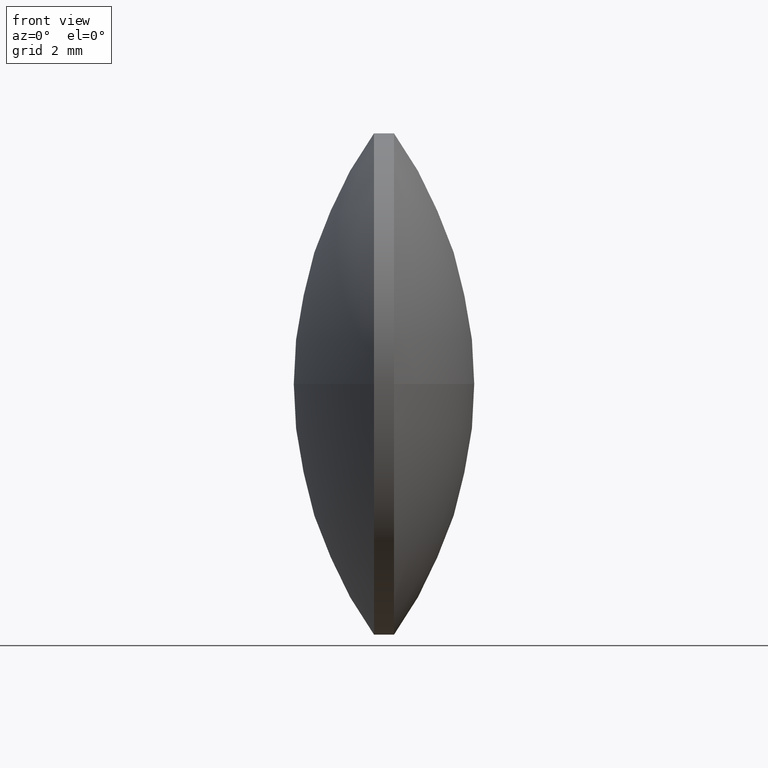
[diagram: clean part render]
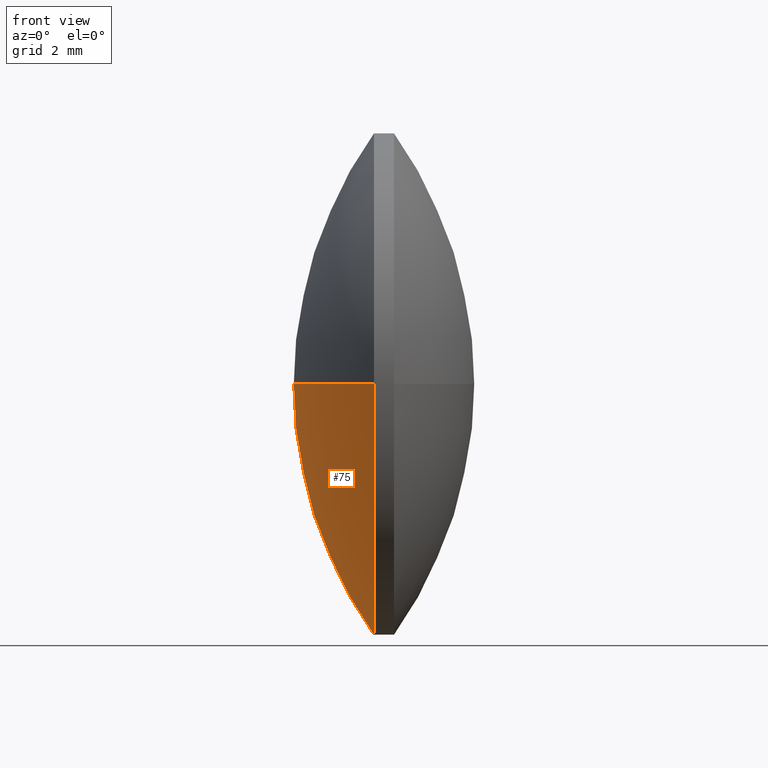
[diagram: same view with one face highlighted and labeled with its STEP entity id]
A machine part, front view. The second image highlights one B-rep face of the part: STEP entity #75.
In plain terms, the highlighted spherical surface has radius 12.9187 mm.
Its self-contained STEP definition (entity closure, byte-faithful):
#2 = EDGE_CURVE ( 'NONE', #48, #190, #340, .T. ) ;
#4 = AXIS2_PLACEMENT_3D ( 'NONE', #99, #200, #47 ) ;
#5 = FACE_OUTER_BOUND ( 'NONE', #273, .T. ) ;
#11 = CARTESIAN_POINT ( 'NONE',  ( 61.27673844960327900, 28.71030296644745400, 0.0000000000000000000 ) ) ;
#12 = DIRECTION ( 'NONE',  ( -0.0000000000000000000, 0.0000000000000000000, 1.000000000000000000 ) ) ;
#16 = CARTESIAN_POINT ( 'NONE',  ( 61.27673844960327900, 28.71030296644745400, 0.0000000000000000000 ) ) ;
#28 = ORIENTED_EDGE ( 'NONE', *, *, #203, .T. ) ;
#37 = AXIS2_PLACEMENT_3D ( 'NONE', #206, #12, #299 ) ;
#47 = DIRECTION ( 'NONE',  ( 0.0000000000000000000, 0.0000000000000000000, 1.000000000000000000 ) ) ;
#48 = VERTEX_POINT ( 'NONE', #91 ) ;
#57 = ORIENTED_EDGE ( 'NONE', *, *, #2, .T. ) ;
#62 = DIRECTION ( 'NONE',  ( -0.0000000000000000000, 0.0000000000000000000, -1.000000000000000000 ) ) ;
#63 = CIRCLE ( 'NONE', #94, 12.91874999999985700 ) ;
#71 = ORIENTED_EDGE ( 'NONE', *, *, #223, .F. ) ;
#75 = ADVANCED_FACE ( 'NONE', ( #5 ), #250, .T. ) ;
#85 = CARTESIAN_POINT ( 'NONE',  ( 48.35798844960342500, 28.71030296644745400, 0.0000000000000000000 ) ) ;
#90 = CARTESIAN_POINT ( 'NONE',  ( 50.75798844960341000, 28.71030296644745400, 0.0000000000000000000 ) ) ;
#91 = CARTESIAN_POINT ( 'NONE',  ( 50.75798844960341000, 36.21030296644737900, 0.0000000000000000000 ) ) ;
#92 = AXIS2_PLACEMENT_3D ( 'NONE', #16, #62, #193 ) ;
#94 = AXIS2_PLACEMENT_3D ( 'NONE', #11, #195, #225 ) ;
#99 = CARTESIAN_POINT ( 'NONE',  ( 50.75798844960341000, 28.71030296644745400, 0.0000000000000000000 ) ) ;
#127 = AXIS2_PLACEMENT_3D ( 'NONE', #90, #173, #248 ) ;
#134 = CIRCLE ( 'NONE', #4, 7.499999999999927200 ) ;
#173 = DIRECTION ( 'NONE',  ( -1.000000000000000000, -0.0000000000000000000, -0.0000000000000000000 ) ) ;
#179 = VERTEX_POINT ( 'NONE', #85 ) ;
#190 = VERTEX_POINT ( 'NONE', #227 ) ;
#193 = DIRECTION ( 'NONE',  ( 0.0000000000000000000, 1.000000000000000000, 0.0000000000000000000 ) ) ;
#194 = ORIENTED_EDGE ( 'NONE', *, *, #274, .T. ) ;
#195 = DIRECTION ( 'NONE',  ( 0.0000000000000000000, 1.224646799147353200E-016, -1.000000000000000000 ) ) ;
#200 = DIRECTION ( 'NONE',  ( -1.000000000000000000, -0.0000000000000000000, -0.0000000000000000000 ) ) ;
#203 = EDGE_CURVE ( 'NONE', #190, #288, #134, .T. ) ;
#206 = CARTESIAN_POINT ( 'NONE',  ( 61.27673844960327900, 28.71030296644745400, 0.0000000000000000000 ) ) ;
#223 = EDGE_CURVE ( 'NONE', #48, #179, #337, .T. ) ;
#225 = DIRECTION ( 'NONE',  ( 0.0000000000000000000, 1.000000000000000000, 1.224646799147353200E-016 ) ) ;
#227 = CARTESIAN_POINT ( 'NONE',  ( 50.75798844960341000, 28.71030296644745400, -7.499999999999927200 ) ) ;
#248 = DIRECTION ( 'NONE',  ( 0.0000000000000000000, 0.0000000000000000000, 1.000000000000000000 ) ) ;
#250 = SPHERICAL_SURFACE ( 'NONE', #92, 12.91874999999985700 ) ;
#273 = EDGE_LOOP ( 'NONE', ( #57, #28, #194, #71 ) ) ;
#274 = EDGE_CURVE ( 'NONE', #288, #179, #63, .T. ) ;
#287 = CARTESIAN_POINT ( 'NONE',  ( 50.75798844960341000, 21.21030296644752500, -9.184850993605061200E-016 ) ) ;
#288 = VERTEX_POINT ( 'NONE', #287 ) ;
#299 = DIRECTION ( 'NONE',  ( 1.000000000000000000, 0.0000000000000000000, 0.0000000000000000000 ) ) ;
#337 = CIRCLE ( 'NONE', #37, 12.91874999999985400 ) ;
#340 = CIRCLE ( 'NONE', #127, 7.499999999999927200 ) ;